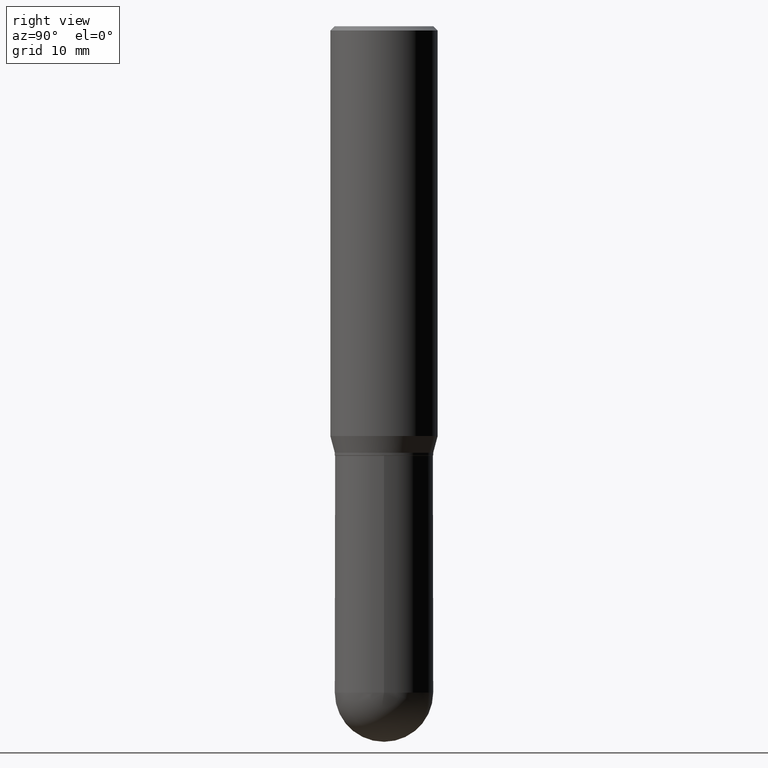
[diagram: clean part render]
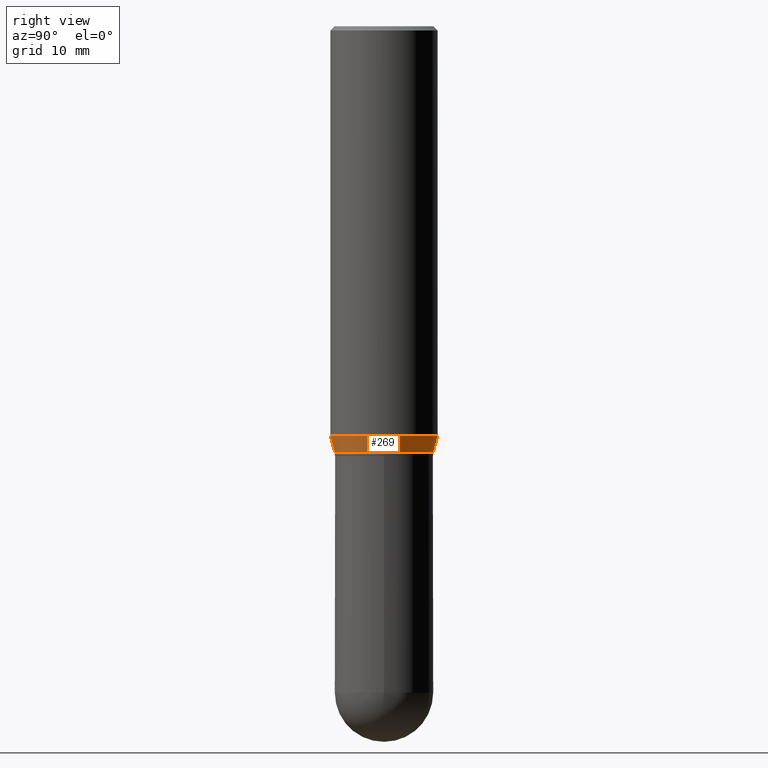
[diagram: same view with one face highlighted and labeled with its STEP entity id]
A machine part, right view. The second image highlights one B-rep face of the part: STEP entity #269.
In plain terms, the highlighted conical surface has half-angle 15 deg.
Its self-contained STEP definition (entity closure, byte-faithful):
#22 = CARTESIAN_POINT ( 'NONE',  ( 1.221422962771647501E-15, 0.1718999999999946959, -1.490000000000000879 ) ) ;
#24 = DIRECTION ( 'NONE',  ( -6.982962677686265922E-15, -1.000000000000000000, 2.913971193241880372E-15 ) ) ;
#30 = AXIS2_PLACEMENT_3D ( 'NONE', #230, #148, #68 ) ;
#52 = ORIENTED_EDGE ( 'NONE', *, *, #435, .F. ) ;
#68 = DIRECTION ( 'NONE',  ( -6.982962677686265922E-15, -1.000000000000000000, 3.178415350394723646E-15 ) ) ;
#77 = CARTESIAN_POINT ( 'NONE',  ( 3.643209233054260103E-29, -5.203079486218066937E-15, -1.490000000000000213 ) ) ;
#86 = EDGE_CURVE ( 'NONE', #432, #162, #402, .T. ) ;
#88 = VERTEX_POINT ( 'NONE', #371 ) ;
#146 = LINE ( 'NONE', #385, #243 ) ;
#148 = DIRECTION ( 'NONE',  ( -2.445106867821650572E-29, 3.491999655179909992E-15, 1.000000000000000000 ) ) ;
#149 = CARTESIAN_POINT ( 'NONE',  ( 1.332267629550222558E-15, 0.1874999999999950318, -1.431780007401926014 ) ) ;
#158 = AXIS2_PLACEMENT_3D ( 'NONE', #337, #213, #24 ) ;
#162 = VERTEX_POINT ( 'NONE', #149 ) ;
#185 = DIRECTION ( 'NONE',  ( -1.807323732225328167E-15, -0.2588190451025179084, 0.9659258262890690894 ) ) ;
#189 = EDGE_CURVE ( 'NONE', #444, #88, #201, .T. ) ;
#201 = CIRCLE ( 'NONE', #30, 0.1718999999999998862 ) ;
#206 = ORIENTED_EDGE ( 'NONE', *, *, #189, .T. ) ;
#213 = DIRECTION ( 'NONE',  ( -2.445106867821650572E-29, 3.491999655179909992E-15, 1.000000000000000000 ) ) ;
#230 = CARTESIAN_POINT ( 'NONE',  ( 3.643209233054260103E-29, -5.203079486218066937E-15, -1.490000000000000213 ) ) ;
#243 = VECTOR ( 'NONE', #185, 39.37007874015748143 ) ;
#245 = DIRECTION ( 'NONE',  ( 1.839019923739597949E-15, 0.2588190451025246253, 0.9659258262890670910 ) ) ;
#269 = ADVANCED_FACE ( 'NONE', ( #352 ), #426, .T. ) ;
#277 = DIRECTION ( 'NONE',  ( -2.445106867821650572E-29, 3.491999655179909992E-15, 1.000000000000000000 ) ) ;
#287 = AXIS2_PLACEMENT_3D ( 'NONE', #77, #277, #508 ) ;
#333 = LINE ( 'NONE', #22, #483 ) ;
#337 = CARTESIAN_POINT ( 'NONE',  ( 3.500855129308181168E-29, -4.999775292141012103E-15, -1.431780007401925348 ) ) ;
#352 = FACE_OUTER_BOUND ( 'NONE', #396, .T. ) ;
#361 = ORIENTED_EDGE ( 'NONE', *, *, #509, .T. ) ;
#371 = CARTESIAN_POINT ( 'NONE',  ( 1.276845296160934931E-15, 0.1718999999999946959, -1.490000000000000879 ) ) ;
#381 = CARTESIAN_POINT ( 'NONE',  ( -1.200371284294231968E-15, -0.1719000000000050765, -1.489999999999999769 ) ) ;
#385 = CARTESIAN_POINT ( 'NONE',  ( -1.200371284294231968E-15, -0.1719000000000050765, -1.489999999999999769 ) ) ;
#396 = EDGE_LOOP ( 'NONE', ( #206, #361, #479, #52 ) ) ;
#402 = CIRCLE ( 'NONE', #158, 0.1875000000000000278 ) ;
#425 = CARTESIAN_POINT ( 'NONE',  ( -1.309305502066140101E-15, -0.1875000000000049960, -1.431780007401924903 ) ) ;
#426 = CONICAL_SURFACE ( 'NONE', #287, 0.1718999999999998862, 0.2617993877991499629 ) ;
#432 = VERTEX_POINT ( 'NONE', #425 ) ;
#435 = EDGE_CURVE ( 'NONE', #444, #432, #146, .T. ) ;
#444 = VERTEX_POINT ( 'NONE', #381 ) ;
#479 = ORIENTED_EDGE ( 'NONE', *, *, #86, .F. ) ;
#483 = VECTOR ( 'NONE', #245, 39.37007874015748854 ) ;
#508 = DIRECTION ( 'NONE',  ( -6.982962677686265922E-15, -1.000000000000000000, 3.178415350394723646E-15 ) ) ;
#509 = EDGE_CURVE ( 'NONE', #88, #162, #333, .T. ) ;